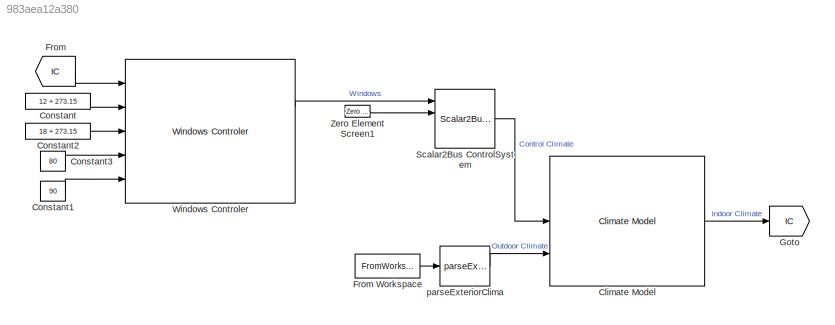
MODEL slx_983aea12a380
KIND model
CONFIG AbsTol = auto
CONFIG EnableMultiTasking = off
CONFIG FixedStep = auto
CONFIG MaxStep = auto
CONFIG MinStep = auto
CONFIG RelTol = 1e-3
CONFIG SampleTimeConstraint = Unconstrained
CONFIG SolverName = VariableStepAuto
CONFIG StartTime = 0.0
CONFIG StopTime = 10
BLOCK [Reference] Climate Model  REF=HORTISIM/Climate/Models/Climate Model
  Ports = [3, 1]
  SourceBlock = HORTISIM/Climate/Models/Climate Model
  SourceProductName = Horti Simulator
BLOCK [Constant] Constant
  Value = 12 + 273.15
BLOCK [Constant] Constant1
  Value = 90
BLOCK [Constant] Constant2
  Value = 18 + 273.15
BLOCK [Constant] Constant3
  Value = 80
BLOCK [From] From
  GotoTag = IC
BLOCK [FromWorkspace] From Workspace
  VariableName = climate
BLOCK [Goto] Goto
  GotoTag = IC
BLOCK [Reference] Scalar2Bus ControlSystem  REF=HORTISIM/Other 
Functions/Scalar2Bus 
Control Climate
  Ports = [4, 1]
  SourceBlock = HORTISIM/Other \nFunctions/Scalar2Bus \nControl Climate
  SourceProductName = Horti Simulator
  SourceType = SubSystem
BLOCK [Reference] Windows Controler  REF=HORTISIM/Climate/Controls/Windows Controler
  NameLocation = top
  Ports = [5, 2]
  SourceBlock = HORTISIM/Climate/Controls/Windows Controler
  SourceProductName = Horti Simulator
BLOCK [Reference] Zero Element Screen1  REF=HORTISIM/Other 
Functions/Zero Element
Screen
  Ports = [0, 1]
  SourceBlock = HORTISIM/Other \nFunctions/Zero Element\nScreen
  SourceProductName = Horti Simulator
  SourceType = SubSystem
BLOCK [Reference] parseExteriorClima  REF=HORTISIM/Other 
Functions/parseExteriorClima
  Ports = [1, 1]
  SourceBlock = HORTISIM/Other \nFunctions/parseExteriorClima
  SourceProductName = Horti Simulator
  SourceType = SubSystem
LINE Climate Model:1 -> Goto:1
LINE Constant1:1 -> Windows Controler:5
LINE Constant2:1 -> Windows Controler:3
LINE Constant3:1 -> Windows Controler:4
LINE Constant:1 -> Windows Controler:2
LINE From Workspace:1 -> parseExteriorClima:1
LINE From:1 -> Windows Controler:1
LINE Scalar2Bus ControlSystem:1 -> Climate Model:2
LINE Windows Controler:1 -> Scalar2Bus ControlSystem:1
LINE Zero Element Screen1:1 -> Scalar2Bus ControlSystem:2
LINE parseExteriorClima:1 -> Climate Model:3
